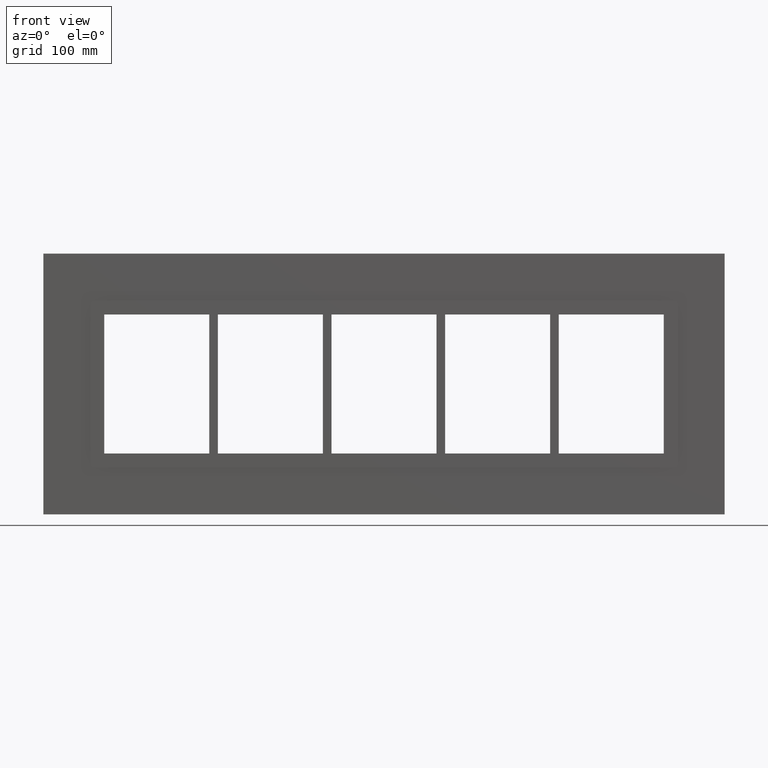
[diagram: clean part render]
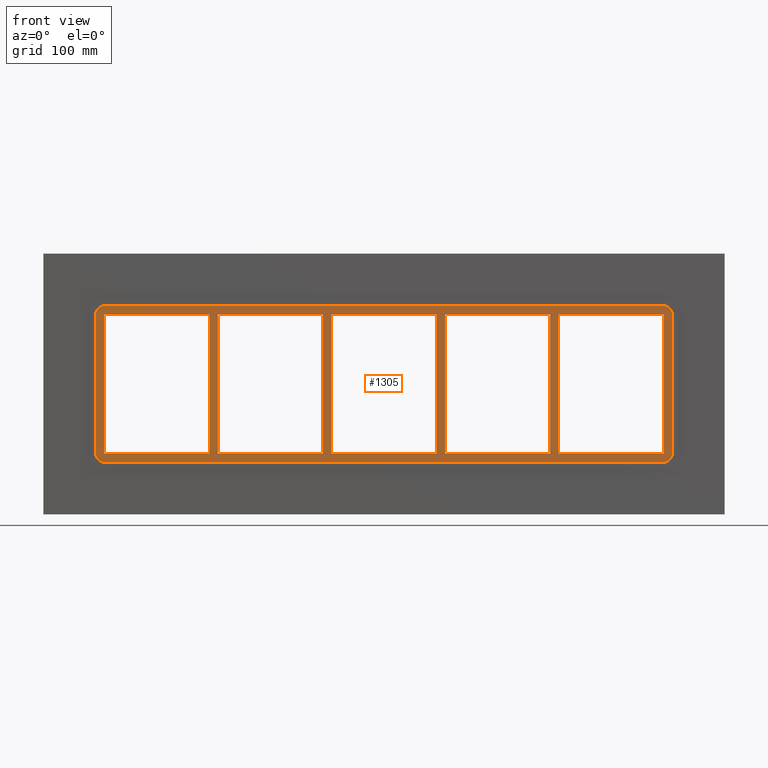
[diagram: same view with one face highlighted and labeled with its STEP entity id]
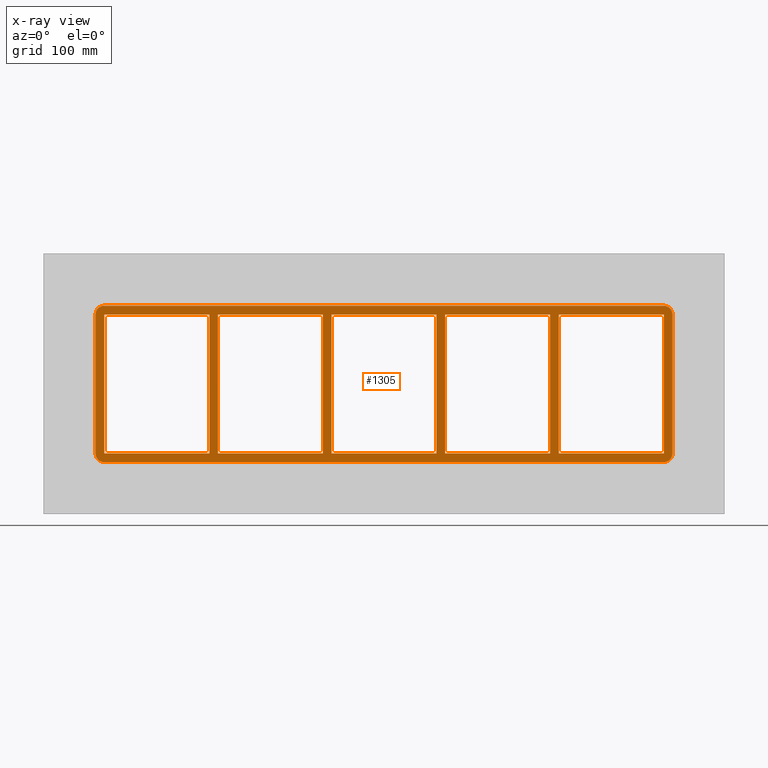
[diagram: x-ray of the same camera — body ghosted, the highlighted face saturated]
A machine part, front view. The second image highlights one B-rep face of the part: STEP entity #1305.
The next image is the same camera in x-ray: the body ghosted, the highlighted face saturated — about 0% of this face is hidden behind the body in this view.
In plain terms, the highlighted planar face has unit normal (0, 1, 0).
Its self-contained STEP definition (entity closure, byte-faithful):
#73=CARTESIAN_POINT('',(190.74999999999875,-3.0,-79.75));
#74=VERTEX_POINT('',#73);
#75=CARTESIAN_POINT('',(190.74999999999872,-3.0,79.750000000000028));
#76=VERTEX_POINT('',#75);
#77=CARTESIAN_POINT('',(190.74999999999875,-3.0,-79.75));
#78=DIRECTION('',(0.0,0.0,1.0));
#79=VECTOR('',#78,159.50000000000003);
#80=LINE('',#77,#79);
#81=EDGE_CURVE('',#74,#76,#80,.T.);
#113=CARTESIAN_POINT('',(200.74999999999278,-3.0,79.750000000000028));
#114=VERTEX_POINT('',#113);
#115=CARTESIAN_POINT('',(200.74999999999278,-3.0,-79.749999999984055));
#116=VERTEX_POINT('',#115);
#117=CARTESIAN_POINT('',(200.74999999999278,-3.0,79.750000000000028));
#118=DIRECTION('',(0.0,0.0,-1.0));
#119=VECTOR('',#118,159.49999999998408);
#120=LINE('',#117,#119);
#121=EDGE_CURVE('',#114,#116,#120,.T.);
#153=CARTESIAN_POINT('',(60.249999999998707,-3.0,-79.75));
#154=VERTEX_POINT('',#153);
#155=CARTESIAN_POINT('',(60.249999999998671,-3.0,79.750000000000028));
#156=VERTEX_POINT('',#155);
#157=CARTESIAN_POINT('',(60.249999999998707,-3.0,-79.75));
#158=DIRECTION('',(0.0,0.0,1.0));
#159=VECTOR('',#158,159.50000000000003);
#160=LINE('',#157,#159);
#161=EDGE_CURVE('',#154,#156,#160,.T.);
#193=CARTESIAN_POINT('',(70.249999999992738,-3.0,79.750000000000028));
#194=VERTEX_POINT('',#193);
#195=CARTESIAN_POINT('',(70.249999999992738,-3.0,-79.749999999984055));
#196=VERTEX_POINT('',#195);
#197=CARTESIAN_POINT('',(70.249999999992738,-3.0,79.750000000000028));
#198=DIRECTION('',(0.0,0.0,-1.0));
#199=VECTOR('',#198,159.49999999998408);
#200=LINE('',#197,#199);
#201=EDGE_CURVE('',#194,#196,#200,.T.);
#233=CARTESIAN_POINT('',(-70.250000000001307,-3.0,-79.75));
#234=VERTEX_POINT('',#233);
#235=CARTESIAN_POINT('',(-70.250000000001336,-3.0,79.750000000000028));
#236=VERTEX_POINT('',#235);
#237=CARTESIAN_POINT('',(-70.250000000001307,-3.0,-79.75));
#238=DIRECTION('',(0.0,0.0,1.0));
#239=VECTOR('',#238,159.50000000000003);
#240=LINE('',#237,#239);
#241=EDGE_CURVE('',#234,#236,#240,.T.);
#273=CARTESIAN_POINT('',(-60.250000000007269,-3.0,79.750000000000028));
#274=VERTEX_POINT('',#273);
#275=CARTESIAN_POINT('',(-60.250000000007269,-3.0,-79.749999999984055));
#276=VERTEX_POINT('',#275);
#277=CARTESIAN_POINT('',(-60.250000000007269,-3.0,79.750000000000028));
#278=DIRECTION('',(0.0,0.0,-1.0));
#279=VECTOR('',#278,159.49999999998408);
#280=LINE('',#277,#279);
#281=EDGE_CURVE('',#274,#276,#280,.T.);
#322=CARTESIAN_POINT('',(-190.75000000000728,-3.0,-79.749999999984055));
#323=VERTEX_POINT('',#322);
#330=CARTESIAN_POINT('',(-70.250000000001307,-3.0,-79.75));
#331=DIRECTION('',(-1.0,0.0,0.0));
#332=VECTOR('',#331,120.50000000000594);
#333=LINE('',#330,#332);
#334=EDGE_CURVE('',#234,#323,#333,.T.);
#352=CARTESIAN_POINT('',(60.249999999998693,-3.0,-79.75));
#353=DIRECTION('',(-1.0,0.0,0.0));
#354=VECTOR('',#353,120.50000000000597);
#355=LINE('',#352,#354);
#356=EDGE_CURVE('',#154,#276,#355,.T.);
#374=CARTESIAN_POINT('',(190.74999999999875,-3.0,-79.75));
#375=DIRECTION('',(-1.0,0.0,0.0));
#376=VECTOR('',#375,120.50000000000603);
#377=LINE('',#374,#376);
#378=EDGE_CURVE('',#74,#196,#377,.T.);
#389=CARTESIAN_POINT('',(321.25,-3.0,-79.75));
#390=VERTEX_POINT('',#389);
#391=CARTESIAN_POINT('',(321.25,-3.0,-79.75));
#392=DIRECTION('',(-1.0,0.0,0.0));
#393=VECTOR('',#392,120.50000000000722);
#394=LINE('',#391,#393);
#395=EDGE_CURVE('',#390,#116,#394,.T.);
#420=CARTESIAN_POINT('',(-190.75000000000728,-3.0,79.750000000000028));
#421=VERTEX_POINT('',#420);
#422=CARTESIAN_POINT('',(-190.75000000000728,-3.0,79.750000000000014));
#423=DIRECTION('',(1.0,0.0,0.0));
#424=VECTOR('',#423,120.50000000000593);
#425=LINE('',#422,#424);
#426=EDGE_CURVE('',#421,#236,#425,.T.);
#451=CARTESIAN_POINT('',(-60.250000000007276,-3.0,79.750000000000014));
#452=DIRECTION('',(1.0,0.0,0.0));
#453=VECTOR('',#452,120.50000000000594);
#454=LINE('',#451,#453);
#455=EDGE_CURVE('',#274,#156,#454,.T.);
#481=CARTESIAN_POINT('',(321.25,-3.0,79.750000000000028));
#482=VERTEX_POINT('',#481);
#489=CARTESIAN_POINT('',(200.74999999999278,-3.0,79.750000000000014));
#490=DIRECTION('',(1.0,0.0,0.0));
#491=VECTOR('',#490,120.50000000000722);
#492=LINE('',#489,#491);
#493=EDGE_CURVE('',#114,#482,#492,.T.);
#504=CARTESIAN_POINT('',(70.249999999992724,-3.0,79.750000000000014));
#505=DIRECTION('',(1.0,0.0,0.0));
#506=VECTOR('',#505,120.50000000000597);
#507=LINE('',#504,#506);
#508=EDGE_CURVE('',#194,#76,#507,.T.);
#525=CARTESIAN_POINT('',(-200.75000000000131,-3.0,-79.75));
#526=VERTEX_POINT('',#525);
#527=CARTESIAN_POINT('',(-200.75000000000134,-3.0,79.750000000000028));
#528=VERTEX_POINT('',#527);
#529=CARTESIAN_POINT('',(-200.75000000000131,-3.0,-79.75));
#530=DIRECTION('',(0.0,0.0,1.0));
#531=VECTOR('',#530,159.50000000000003);
#532=LINE('',#529,#531);
#533=EDGE_CURVE('',#526,#528,#532,.T.);
#565=CARTESIAN_POINT('',(-190.75000000000728,-3.0,79.750000000000028));
#566=DIRECTION('',(0.0,0.0,-1.0));
#567=VECTOR('',#566,159.49999999998408);
#568=LINE('',#565,#567);
#569=EDGE_CURVE('',#421,#323,#568,.T.);
#596=CARTESIAN_POINT('',(-321.25,-3.0,-79.75));
#597=VERTEX_POINT('',#596);
#604=CARTESIAN_POINT('',(-200.75000000000128,-3.0,-79.75));
#605=DIRECTION('',(-1.0,0.0,0.0));
#606=VECTOR('',#605,120.49999999999872);
#607=LINE('',#604,#606);
#608=EDGE_CURVE('',#526,#597,#607,.T.);
#619=CARTESIAN_POINT('',(-321.25,-3.0,79.750000000000028));
#620=VERTEX_POINT('',#619);
#621=CARTESIAN_POINT('',(-321.25,-3.0,79.750000000000014));
#622=DIRECTION('',(1.0,0.0,0.0));
#623=VECTOR('',#622,120.49999999999864);
#624=LINE('',#621,#623);
#625=EDGE_CURVE('',#620,#528,#624,.T.);
#945=CARTESIAN_POINT('',(-321.24999999999994,-3.0,-79.75));
#946=DIRECTION('',(0.0,0.0,1.0));
#947=VECTOR('',#946,159.50000000000003);
#948=LINE('',#945,#947);
#949=EDGE_CURVE('',#597,#620,#948,.T.);
#960=CARTESIAN_POINT('',(321.25000000000006,-3.0,89.750000000000014));
#961=VERTEX_POINT('',#960);
#968=CARTESIAN_POINT('',(331.25000000000006,-3.0,79.750000000000014));
#969=VERTEX_POINT('',#968);
#970=CARTESIAN_POINT('',(321.25000000000006,-3.0,79.750000000000014));
#971=DIRECTION('',(0.0,1.0,0.0));
#972=DIRECTION('',(0.707106781186547,0.0,0.707106781186547));
#973=AXIS2_PLACEMENT_3D('',#970,#971,#972);
#974=CIRCLE('',#973,9.999999999999998);
#975=EDGE_CURVE('',#961,#969,#974,.T.);
#1025=CARTESIAN_POINT('',(331.25000000000006,-3.0,-79.750000000000014));
#1026=VERTEX_POINT('',#1025);
#1027=CARTESIAN_POINT('',(331.25000000000006,-3.0,-79.750000000000014));
#1028=DIRECTION('',(0.0,0.0,1.0));
#1029=VECTOR('',#1028,159.50000000000003);
#1030=LINE('',#1027,#1029);
#1031=EDGE_CURVE('',#1026,#969,#1030,.T.);
#1072=CARTESIAN_POINT('',(-321.24999999999994,-3.0,89.750000000000014));
#1073=VERTEX_POINT('',#1072);
#1080=CARTESIAN_POINT('',(321.25000000000006,-3.0,89.750000000000014));
#1081=DIRECTION('',(-1.0,0.0,0.0));
#1082=VECTOR('',#1081,642.5);
#1083=LINE('',#1080,#1082);
#1084=EDGE_CURVE('',#961,#1073,#1083,.T.);
#1097=CARTESIAN_POINT('',(321.25000000000006,-3.0,-89.750000000000014));
#1098=VERTEX_POINT('',#1097);
#1099=CARTESIAN_POINT('',(321.25000000000006,-3.0,-79.750000000000014));
#1100=DIRECTION('',(0.0,1.0,0.0));
#1101=DIRECTION('',(0.707106781186547,0.0,-0.707106781186547));
#1102=AXIS2_PLACEMENT_3D('',#1099,#1100,#1101);
#1103=CIRCLE('',#1102,9.999999999999998);
#1104=EDGE_CURVE('',#1026,#1098,#1103,.T.);
#1146=CARTESIAN_POINT('',(-331.24999999999994,-3.0,79.750000000000014));
#1147=VERTEX_POINT('',#1146);
#1154=CARTESIAN_POINT('',(-321.24999999999994,-3.0,79.750000000000014));
#1155=DIRECTION('',(0.0,1.0,0.0));
#1156=DIRECTION('',(-0.707106781186547,0.0,0.707106781186547));
#1157=AXIS2_PLACEMENT_3D('',#1154,#1155,#1156);
#1158=CIRCLE('',#1157,9.999999999999998);
#1159=EDGE_CURVE('',#1147,#1073,#1158,.T.);
#1172=CARTESIAN_POINT('',(-321.24999999999994,-3.0,-89.750000000000014));
#1173=VERTEX_POINT('',#1172);
#1174=CARTESIAN_POINT('',(-321.24999999999994,-3.0,-89.750000000000014));
#1175=DIRECTION('',(1.0,0.0,0.0));
#1176=VECTOR('',#1175,642.5);
#1177=LINE('',#1174,#1176);
#1178=EDGE_CURVE('',#1173,#1098,#1177,.T.);
#1219=CARTESIAN_POINT('',(-331.24999999999994,-3.0,-79.750000000000014));
#1220=VERTEX_POINT('',#1219);
#1227=CARTESIAN_POINT('',(-331.24999999999994,-3.0,79.750000000000014));
#1228=DIRECTION('',(0.0,0.0,-1.0));
#1229=VECTOR('',#1228,159.50000000000003);
#1230=LINE('',#1227,#1229);
#1231=EDGE_CURVE('',#1147,#1220,#1230,.T.);
#1244=CARTESIAN_POINT('',(-321.24999999999994,-3.0,-79.750000000000014));
#1245=DIRECTION('',(0.0,1.0,0.0));
#1246=DIRECTION('',(-0.707106781186547,0.0,-0.707106781186547));
#1247=AXIS2_PLACEMENT_3D('',#1244,#1245,#1246);
#1248=CIRCLE('',#1247,9.999999999999998);
#1249=EDGE_CURVE('',#1173,#1220,#1248,.T.);
#1255=CARTESIAN_POINT('',(7.352261E-014,-3.0,0.0));
#1256=DIRECTION('',(0.0,1.0,0.0));
#1257=DIRECTION('',(0.0,0.0,1.0));
#1258=AXIS2_PLACEMENT_3D('',#1255,#1256,#1257);
#1259=PLANE('',#1258);
#1260=ORIENTED_EDGE('',*,*,#1104,.F.);
#1261=ORIENTED_EDGE('',*,*,#1031,.T.);
#1262=ORIENTED_EDGE('',*,*,#975,.F.);
#1263=ORIENTED_EDGE('',*,*,#1084,.T.);
#1264=ORIENTED_EDGE('',*,*,#1159,.F.);
#1265=ORIENTED_EDGE('',*,*,#1231,.T.);
#1266=ORIENTED_EDGE('',*,*,#1249,.F.);
#1267=ORIENTED_EDGE('',*,*,#1178,.T.);
#1268=EDGE_LOOP('',(#1260,#1261,#1262,#1263,#1264,#1265,#1266,#1267));
#1269=FACE_OUTER_BOUND('',#1268,.T.);
#1270=ORIENTED_EDGE('',*,*,#378,.T.);
#1271=ORIENTED_EDGE('',*,*,#201,.F.);
#1272=ORIENTED_EDGE('',*,*,#508,.T.);
#1273=ORIENTED_EDGE('',*,*,#81,.F.);
#1274=EDGE_LOOP('',(#1270,#1271,#1272,#1273));
#1275=FACE_BOUND('',#1274,.T.);
#1276=ORIENTED_EDGE('',*,*,#356,.T.);
#1277=ORIENTED_EDGE('',*,*,#281,.F.);
#1278=ORIENTED_EDGE('',*,*,#455,.T.);
#1279=ORIENTED_EDGE('',*,*,#161,.F.);
#1280=EDGE_LOOP('',(#1276,#1277,#1278,#1279));
#1281=FACE_BOUND('',#1280,.T.);
#1282=ORIENTED_EDGE('',*,*,#334,.T.);
#1283=ORIENTED_EDGE('',*,*,#569,.F.);
#1284=ORIENTED_EDGE('',*,*,#426,.T.);
#1285=ORIENTED_EDGE('',*,*,#241,.F.);
#1286=EDGE_LOOP('',(#1282,#1283,#1284,#1285));
#1287=FACE_BOUND('',#1286,.T.);
#1288=ORIENTED_EDGE('',*,*,#608,.T.);
#1289=ORIENTED_EDGE('',*,*,#949,.T.);
#1290=ORIENTED_EDGE('',*,*,#625,.T.);
#1291=ORIENTED_EDGE('',*,*,#533,.F.);
#1292=EDGE_LOOP('',(#1288,#1289,#1290,#1291));
#1293=FACE_BOUND('',#1292,.T.);
#1294=ORIENTED_EDGE('',*,*,#121,.F.);
#1295=ORIENTED_EDGE('',*,*,#493,.T.);
#1296=CARTESIAN_POINT('',(321.25,-3.0,79.750000000000028));
#1297=DIRECTION('',(0.0,0.0,-1.0));
#1298=VECTOR('',#1297,159.50000000000006);
#1299=LINE('',#1296,#1298);
#1300=EDGE_CURVE('',#482,#390,#1299,.T.);
#1301=ORIENTED_EDGE('',*,*,#1300,.T.);
#1302=ORIENTED_EDGE('',*,*,#395,.T.);
#1303=EDGE_LOOP('',(#1294,#1295,#1301,#1302));
#1304=FACE_BOUND('',#1303,.T.);
#1305=ADVANCED_FACE('',(#1269,#1275,#1281,#1287,#1293,#1304),#1259,.F.);